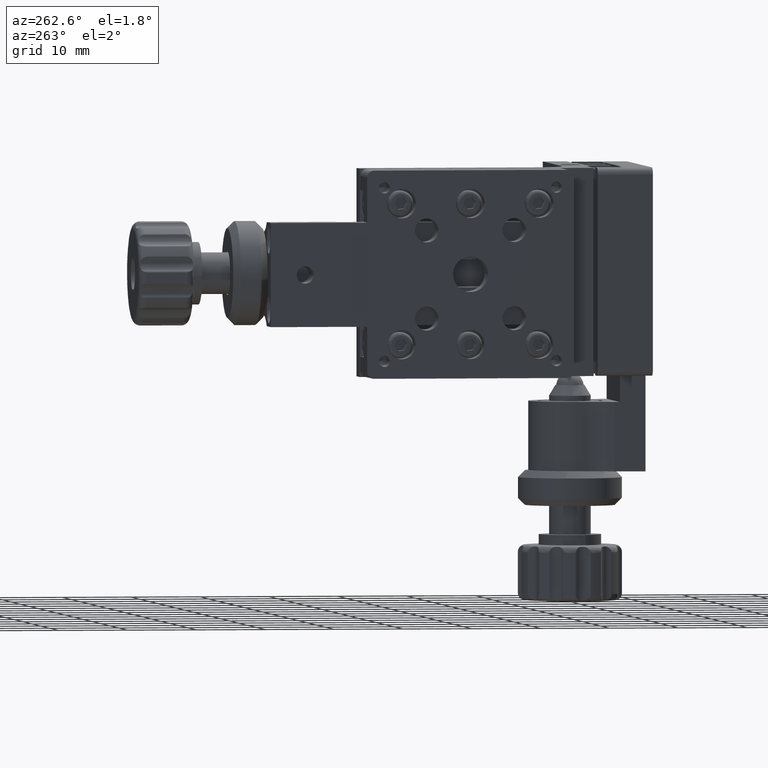
[diagram: clean part render]
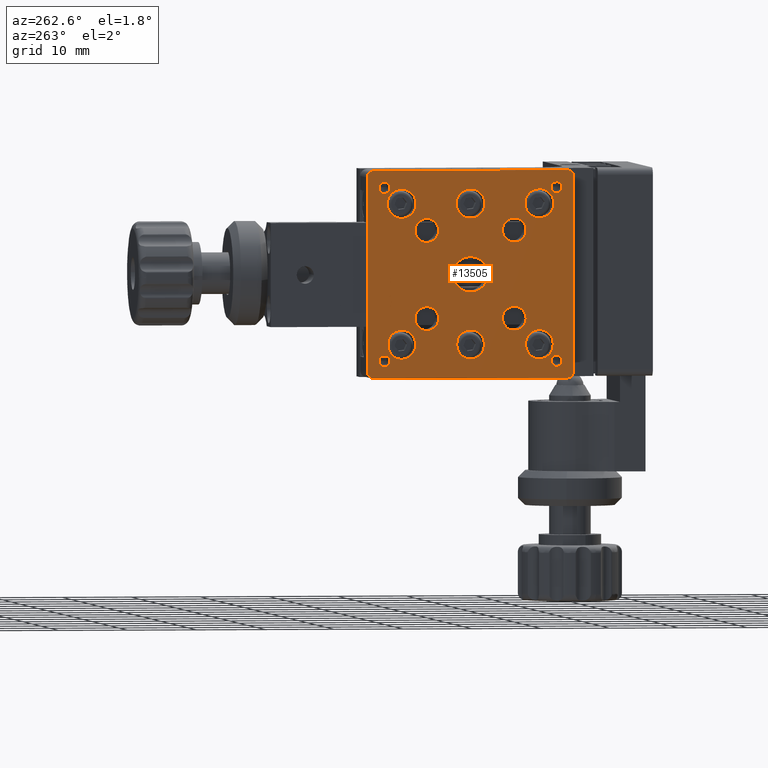
[diagram: same view with one face highlighted and labeled with its STEP entity id]
A machine part, auxiliary view. The second image highlights one B-rep face of the part: STEP entity #13505.
In plain terms, the highlighted planar face has unit normal (1, 0, 0).
Its self-contained STEP definition (entity closure, byte-faithful):
#383 = CIRCLE ( 'NONE', #15889, 0.9999999999999991100 ) ;
#711 = EDGE_CURVE ( 'NONE', #14404, #26437, #41181, .T. ) ;
#725 = DIRECTION ( 'NONE',  ( -1.000000000000000000, -2.282530889443428800E-016, -5.533751964173937300E-016 ) ) ;
#732 = AXIS2_PLACEMENT_3D ( 'NONE', #27218, #9975, #31419 ) ;
#802 = EDGE_LOOP ( 'NONE', ( #48774, #10825, #19311, #51978, #26288, #47659, #32256, #23997 ) ) ;
#847 = AXIS2_PLACEMENT_3D ( 'NONE', #16106, #20347, #24226 ) ;
#949 = ORIENTED_EDGE ( 'NONE', *, *, #4828, .F. ) ;
#978 = CIRCLE ( 'NONE', #4341, 0.7999999999999899400 ) ;
#1261 = CARTESIAN_POINT ( 'NONE',  ( -4.599999999999988100, 16.65000000000000600, -6.350000000000015600 ) ) ;
#1291 = CARTESIAN_POINT ( 'NONE',  ( -4.599999999999991700, 27.62280000000000900, -6.350000000000014700 ) ) ;
#1353 = VERTEX_POINT ( 'NONE', #46066 ) ;
#1570 = ORIENTED_EDGE ( 'NONE', *, *, #42021, .F. ) ;
#1784 = EDGE_CURVE ( 'NONE', #3541, #48182, #4379, .T. ) ;
#1793 = ORIENTED_EDGE ( 'NONE', *, *, #14414, .F. ) ;
#1838 = EDGE_CURVE ( 'NONE', #20154, #9327, #15953, .T. ) ;
#1851 = DIRECTION ( 'NONE',  ( 4.336808689942017700E-016, 0.0000000000000000000, -1.000000000000000000 ) ) ;
#2220 = DIRECTION ( 'NONE',  ( -2.282530889443435200E-016, 1.000000000000000000, 1.964574336543731100E-016 ) ) ;
#2498 = CARTESIAN_POINT ( 'NONE',  ( -4.599999999999999600, 7.999999999999992900, 13.99999999999997000 ) ) ;
#2704 = VERTEX_POINT ( 'NONE', #39926 ) ;
#2733 = VECTOR ( 'NONE', #41541, 1000.000000000000200 ) ;
#2873 = DIRECTION ( 'NONE',  ( -1.000000000000000000, -2.282530889443428800E-016, -4.377269646856065600E-016 ) ) ;
#2884 = EDGE_LOOP ( 'NONE', ( #10796, #41426 ) ) ;
#2894 = CARTESIAN_POINT ( 'NONE',  ( -4.599999999999986300, 13.00000000000000700, -10.00000000000001800 ) ) ;
#3299 = AXIS2_PLACEMENT_3D ( 'NONE', #30521, #26695, #44438 ) ;
#3402 = FACE_OUTER_BOUND ( 'NONE', #802, .T. ) ;
#3541 = VERTEX_POINT ( 'NONE', #11920 ) ;
#3585 = ORIENTED_EDGE ( 'NONE', *, *, #711, .F. ) ;
#4032 = ORIENTED_EDGE ( 'NONE', *, *, #41670, .F. ) ;
#4091 = FACE_BOUND ( 'NONE', #48949, .T. ) ;
#4125 = CARTESIAN_POINT ( 'NONE',  ( -4.599999999999997900, 14.92279999999999000, 6.349999999999984500 ) ) ;
#4181 = DIRECTION ( 'NONE',  ( 4.319153771519010900E-016, 0.02486808277456463400, -0.9996907414091207300 ) ) ;
#4341 = AXIS2_PLACEMENT_3D ( 'NONE', #28523, #6882, #55032 ) ;
#4379 = CIRCLE ( 'NONE', #5339, 2.100000000000001000 ) ;
#4440 = VERTEX_POINT ( 'NONE', #15340 ) ;
#4655 = CARTESIAN_POINT ( 'NONE',  ( -4.600000000000001400, 23.00000000000000400, 10.19999999999998500 ) ) ;
#4658 = CIRCLE ( 'NONE', #10984, 2.000000000000000000 ) ;
#4813 = EDGE_CURVE ( 'NONE', #35525, #33828, #9879, .T. ) ;
#4828 = EDGE_CURVE ( 'NONE', #6029, #18799, #978, .T. ) ;
#4870 = DIRECTION ( 'NONE',  ( -1.000000000000000000, -2.282530889443428800E-016, -5.533751964173937300E-016 ) ) ;
#4985 = VERTEX_POINT ( 'NONE', #26197 ) ;
#5050 = CARTESIAN_POINT ( 'NONE',  ( -4.600000000000009400, 15.09999999999999400, 10.19999999999998300 ) ) ;
#5143 = EDGE_LOOP ( 'NONE', ( #25597, #28413 ) ) ;
#5209 = DIRECTION ( 'NONE',  ( -1.000000000000000000, -2.282530889443428800E-016, -4.377269646856065600E-016 ) ) ;
#5339 = AXIS2_PLACEMENT_3D ( 'NONE', #5476, #23288, #14437 ) ;
#5352 = CIRCLE ( 'NONE', #10235, 1.727199999999998100 ) ;
#5399 = DIRECTION ( 'NONE',  ( 4.130293990420973300E-016, -1.000000000000000000, 0.0000000000000000000 ) ) ;
#5476 = CARTESIAN_POINT ( 'NONE',  ( -4.600000000000001400, 23.00000000000000400, 10.19999999999998500 ) ) ;
#5506 = CARTESIAN_POINT ( 'NONE',  ( -4.600000000000001400, 34.99007438041998300, -9.800992561958020500 ) ) ;
#5566 = LINE ( 'NONE', #41357, #34325 ) ;
#5654 = CARTESIAN_POINT ( 'NONE',  ( -4.600000000000001400, 29.34999999999998400, 6.349999999999985400 ) ) ;
#5784 = AXIS2_PLACEMENT_3D ( 'NONE', #51429, #33258, #55769 ) ;
#5840 = ORIENTED_EDGE ( 'NONE', *, *, #22302, .F. ) ;
#5939 = DIRECTION ( 'NONE',  ( -1.000000000000000000, -2.282530889443428800E-016, -5.533751964173937300E-016 ) ) ;
#5945 = EDGE_CURVE ( 'NONE', #26437, #14404, #9733, .T. ) ;
#5953 = VERTEX_POINT ( 'NONE', #22641 ) ;
#6005 = EDGE_CURVE ( 'NONE', #36110, #4440, #28893, .T. ) ;
#6029 = VERTEX_POINT ( 'NONE', #36556 ) ;
#6174 = EDGE_CURVE ( 'NONE', #1353, #4985, #23517, .T. ) ;
#6234 = CARTESIAN_POINT ( 'NONE',  ( -4.600000000000008500, 35.49999999999997900, 12.49999999999998800 ) ) ;
#6257 = ORIENTED_EDGE ( 'NONE', *, *, #24209, .F. ) ;
#6586 = AXIS2_PLACEMENT_3D ( 'NONE', #18199, #5939, #49222 ) ;
#6595 = DIRECTION ( 'NONE',  ( 4.336808689942017700E-016, 0.0000000000000000000, -1.000000000000000000 ) ) ;
#6788 = CARTESIAN_POINT ( 'NONE',  ( -4.599999999999986300, 15.00000000000000700, -10.20000000000002200 ) ) ;
#6848 = ORIENTED_EDGE ( 'NONE', *, *, #56487, .F. ) ;
#6882 = DIRECTION ( 'NONE',  ( -1.000000000000000000, -2.282530889443428800E-016, -4.377269646856065600E-016 ) ) ;
#7077 = CARTESIAN_POINT ( 'NONE',  ( -4.600000000000003200, 32.99999999999997200, 10.19999999999997800 ) ) ;
#7235 = EDGE_LOOP ( 'NONE', ( #18584, #5840 ) ) ;
#7298 = CARTESIAN_POINT ( 'NONE',  ( -4.600000000000008500, 34.69999999999998900, 12.49999999999998800 ) ) ;
#7541 = DIRECTION ( 'NONE',  ( -1.000000000000000000, -2.282530889443428800E-016, -4.377269646856065600E-016 ) ) ;
#7802 = CARTESIAN_POINT ( 'NONE',  ( -4.599999999999989900, 21.00992561958000900, -9.800992561958020500 ) ) ;
#7944 = CIRCLE ( 'NONE', #41763, 2.099999999999999600 ) ;
#8003 = ORIENTED_EDGE ( 'NONE', *, *, #55034, .F. ) ;
#8191 = FACE_BOUND ( 'NONE', #47849, .T. ) ;
#8288 = CARTESIAN_POINT ( 'NONE',  ( -4.599999999999994300, 35.50000000000000700, -12.50000000000001400 ) ) ;
#8379 = ORIENTED_EDGE ( 'NONE', *, *, #56061, .F. ) ;
#8407 = EDGE_CURVE ( 'NONE', #44341, #2704, #47946, .T. ) ;
#8558 = CARTESIAN_POINT ( 'NONE',  ( -4.599999999999991700, 35.00000000000000000, -10.20000000000001200 ) ) ;
#8836 = DIRECTION ( 'NONE',  ( 0.0000000000000000000, -1.000000000000000000, 0.0000000000000000000 ) ) ;
#9154 = CARTESIAN_POINT ( 'NONE',  ( -4.599999999999980100, 33.00000000000000700, -12.20000000000001900 ) ) ;
#9327 = VERTEX_POINT ( 'NONE', #46714 ) ;
#9438 = CARTESIAN_POINT ( 'NONE',  ( -4.599999999999991700, 31.00992561958001300, -9.800992561958018700 ) ) ;
#9503 = EDGE_CURVE ( 'NONE', #18799, #6029, #10980, .T. ) ;
#9733 = CIRCLE ( 'NONE', #732, 2.552699999999990900 ) ;
#9879 = CIRCLE ( 'NONE', #49444, 0.7999999999999882800 ) ;
#9887 = DIRECTION ( 'NONE',  ( 0.0000000000000000000, -1.000000000000000000, 0.0000000000000000000 ) ) ;
#9975 = DIRECTION ( 'NONE',  ( -1.000000000000000000, -2.282530889443428800E-016, -4.377269646856065600E-016 ) ) ;
#10052 = CIRCLE ( 'NONE', #53798, 2.000000000000000000 ) ;
#10178 = CIRCLE ( 'NONE', #21600, 2.100000000000001000 ) ;
#10235 = AXIS2_PLACEMENT_3D ( 'NONE', #5654, #27872, #23466 ) ;
#10452 = LINE ( 'NONE', #8558, #44031 ) ;
#10478 = DIRECTION ( 'NONE',  ( 4.336808689942017700E-016, 0.0000000000000000000, -1.000000000000000000 ) ) ;
#10556 = AXIS2_PLACEMENT_3D ( 'NONE', #19809, #46020, #50421 ) ;
#10736 = EDGE_CURVE ( 'NONE', #43642, #33038, #48542, .T. ) ;
#10796 = ORIENTED_EDGE ( 'NONE', *, *, #46275, .F. ) ;
#10825 = ORIENTED_EDGE ( 'NONE', *, *, #8407, .T. ) ;
#10839 = CARTESIAN_POINT ( 'NONE',  ( -4.600000000000006800, 36.99999999999996400, 14.99999999999999600 ) ) ;
#10939 = DIRECTION ( 'NONE',  ( 3.397820887642130400E-016, -1.000000000000000000, -1.964574336543734500E-016 ) ) ;
#10980 = CIRCLE ( 'NONE', #31333, 0.7999999999999899400 ) ;
#10984 = AXIS2_PLACEMENT_3D ( 'NONE', #56774, #43608, #12966 ) ;
#11139 = DIRECTION ( 'NONE',  ( 4.336808689942017700E-016, 0.0000000000000000000, -1.000000000000000000 ) ) ;
#11201 = ORIENTED_EDGE ( 'NONE', *, *, #15598, .F. ) ;
#11229 = VERTEX_POINT ( 'NONE', #26740 ) ;
#11324 = FACE_BOUND ( 'NONE', #53160, .T. ) ;
#11627 = EDGE_LOOP ( 'NONE', ( #1570, #54332 ) ) ;
#11915 = DIRECTION ( 'NONE',  ( 0.0000000000000000000, -1.000000000000000000, 0.0000000000000000000 ) ) ;
#11920 = CARTESIAN_POINT ( 'NONE',  ( -4.600000000000000500, 20.90000000000000200, 10.19999999999998500 ) ) ;
#12100 = ORIENTED_EDGE ( 'NONE', *, *, #55198, .F. ) ;
#12113 = CARTESIAN_POINT ( 'NONE',  ( -4.599999999999982800, 8.000000000000008900, -15.00000000000001400 ) ) ;
#12126 = VECTOR ( 'NONE', #17182, 1000.000000000000000 ) ;
#12966 = DIRECTION ( 'NONE',  ( 4.336808689942017700E-016, 0.0000000000000000000, -1.000000000000000000 ) ) ;
#13123 = CIRCLE ( 'NONE', #45462, 2.099999999999997900 ) ;
#13409 = VERTEX_POINT ( 'NONE', #9154 ) ;
#13477 = VECTOR ( 'NONE', #37385, 1000.000000000000000 ) ;
#13505 = ADVANCED_FACE ( 'NONE', ( #34605, #20939, #11324, #54439, #23993, #13687, #17076, #8191, #32842, #4091, #45856, #42442, #39741, #41747, #34209, #3402 ), #53686, .F. ) ;
#13687 = FACE_BOUND ( 'NONE', #48857, .T. ) ;
#13724 = CARTESIAN_POINT ( 'NONE',  ( -4.599999999999982800, 9.000000000000008900, -14.00000000000001400 ) ) ;
#13880 = CARTESIAN_POINT ( 'NONE',  ( -4.599999999999986300, 15.00000000000000700, -10.20000000000002200 ) ) ;
#13933 = CARTESIAN_POINT ( 'NONE',  ( -4.599999999999994300, 10.49999999999999300, 12.49999999999998600 ) ) ;
#14201 = VERTEX_POINT ( 'NONE', #32793 ) ;
#14404 = VERTEX_POINT ( 'NONE', #42711 ) ;
#14414 = EDGE_CURVE ( 'NONE', #48182, #3541, #10178, .T. ) ;
#14437 = DIRECTION ( 'NONE',  ( 4.130293990420967400E-016, -1.000000000000000000, 0.0000000000000000000 ) ) ;
#14444 = DIRECTION ( 'NONE',  ( 0.0000000000000000000, -1.000000000000000000, 0.0000000000000000000 ) ) ;
#14874 = DIRECTION ( 'NONE',  ( -1.000000000000000000, -2.282530889443428800E-016, -5.533751964173937300E-016 ) ) ;
#15092 = CIRCLE ( 'NONE', #3299, 1.727199999999998100 ) ;
#15301 = DIRECTION ( 'NONE',  ( -2.282530889443435200E-016, 1.000000000000000000, 1.964574336543731100E-016 ) ) ;
#15319 = EDGE_CURVE ( 'NONE', #52213, #14201, #5352, .T. ) ;
#15340 = CARTESIAN_POINT ( 'NONE',  ( -4.600000000000006800, 37.99999999999996400, 13.99999999999999500 ) ) ;
#15398 = VERTEX_POINT ( 'NONE', #23367 ) ;
#15414 = CIRCLE ( 'NONE', #847, 2.000000000000000000 ) ;
#15563 = DIRECTION ( 'NONE',  ( 0.0000000000000000000, -1.000000000000000000, 0.0000000000000000000 ) ) ;
#15598 = EDGE_CURVE ( 'NONE', #35239, #20340, #4658, .T. ) ;
#15626 = EDGE_CURVE ( 'NONE', #4440, #44341, #21062, .T. ) ;
#15747 = CARTESIAN_POINT ( 'NONE',  ( -4.599999999999988100, 22.99999999999998900, -10.00000000000001600 ) ) ;
#15774 = VERTEX_POINT ( 'NONE', #48200 ) ;
#15868 = EDGE_LOOP ( 'NONE', ( #48895, #16128, #56701, #6257, #55721 ) ) ;
#15889 = AXIS2_PLACEMENT_3D ( 'NONE', #13724, #725, #52388 ) ;
#15953 = CIRCLE ( 'NONE', #51517, 2.000000000000000000 ) ;
#16066 = EDGE_CURVE ( 'NONE', #42807, #2704, #44992, .T. ) ;
#16101 = CARTESIAN_POINT ( 'NONE',  ( -4.599999999999991700, 29.35000000000000900, -6.350000000000014700 ) ) ;
#16106 = CARTESIAN_POINT ( 'NONE',  ( -4.599999999999988100, 22.99999999999998900, -10.20000000000001500 ) ) ;
#16128 = ORIENTED_EDGE ( 'NONE', *, *, #47012, .F. ) ;
#16697 = DIRECTION ( 'NONE',  ( 5.533751964173943200E-016, 1.964574336543732300E-016, -1.000000000000000000 ) ) ;
#17076 = FACE_BOUND ( 'NONE', #15868, .T. ) ;
#17182 = DIRECTION ( 'NONE',  ( 5.533751964173943200E-016, 1.964574336543732300E-016, -1.000000000000000000 ) ) ;
#17608 = CIRCLE ( 'NONE', #41511, 0.7999999999999899400 ) ;
#17690 = AXIS2_PLACEMENT_3D ( 'NONE', #8288, #39476, #30526 ) ;
#17847 = ORIENTED_EDGE ( 'NONE', *, *, #37037, .F. ) ;
#18199 = CARTESIAN_POINT ( 'NONE',  ( -4.600000000000006800, 36.99999999999996400, 13.99999999999999500 ) ) ;
#18584 = ORIENTED_EDGE ( 'NONE', *, *, #22178, .F. ) ;
#18672 = AXIS2_PLACEMENT_3D ( 'NONE', #56253, #21288, #30098 ) ;
#18799 = VERTEX_POINT ( 'NONE', #48175 ) ;
#18851 = DIRECTION ( 'NONE',  ( -1.000000000000000000, -2.282530889443428800E-016, -4.377269646856065600E-016 ) ) ;
#18853 = CIRCLE ( 'NONE', #21374, 2.000000000000000000 ) ;
#18912 = EDGE_CURVE ( 'NONE', #48393, #36037, #15414, .T. ) ;
#19311 = ORIENTED_EDGE ( 'NONE', *, *, #16066, .F. ) ;
#19320 = EDGE_CURVE ( 'NONE', #27532, #38535, #33544, .T. ) ;
#19461 = ORIENTED_EDGE ( 'NONE', *, *, #10736, .F. ) ;
#19558 = CARTESIAN_POINT ( 'NONE',  ( -4.599999999999996100, 22.99999999999998600, -1.391015657334570400E-014 ) ) ;
#19809 = CARTESIAN_POINT ( 'NONE',  ( -4.599999999999981000, 33.00000000000000700, -10.20000000000001900 ) ) ;
#19906 = CARTESIAN_POINT ( 'NONE',  ( -4.599999999999994300, 36.29999999999999000, -12.50000000000001400 ) ) ;
#20154 = VERTEX_POINT ( 'NONE', #7802 ) ;
#20194 = CARTESIAN_POINT ( 'NONE',  ( -4.599999999999982800, 8.000000000000008900, -15.00000000000001400 ) ) ;
#20264 = DIRECTION ( 'NONE',  ( 4.130293990420973300E-016, -1.000000000000000000, 0.0000000000000000000 ) ) ;
#20288 = EDGE_CURVE ( 'NONE', #42807, #11229, #383, .T. ) ;
#20340 = VERTEX_POINT ( 'NONE', #5506 ) ;
#20347 = DIRECTION ( 'NONE',  ( -1.000000000000000000, -2.282530889443428800E-016, -5.533751964173937300E-016 ) ) ;
#20359 = CIRCLE ( 'NONE', #5784, 1.727199999999998100 ) ;
#20463 = CARTESIAN_POINT ( 'NONE',  ( -4.599999999999994300, 10.49999999999999300, 12.49999999999998600 ) ) ;
#20484 = DIRECTION ( 'NONE',  ( 4.130293990420969900E-016, -1.000000000000000000, 0.0000000000000000000 ) ) ;
#20486 = ORIENTED_EDGE ( 'NONE', *, *, #42291, .F. ) ;
#20638 = VECTOR ( 'NONE', #34691, 1000.000000000000000 ) ;
#20939 = FACE_BOUND ( 'NONE', #2884, .T. ) ;
#21062 = LINE ( 'NONE', #52399, #12126 ) ;
#21086 = ORIENTED_EDGE ( 'NONE', *, *, #42085, .F. ) ;
#21288 = DIRECTION ( 'NONE',  ( -1.000000000000000000, -2.282530889443428800E-016, -5.533751964173937300E-016 ) ) ;
#21374 = AXIS2_PLACEMENT_3D ( 'NONE', #28112, #23896, #1851 ) ;
#21600 = AXIS2_PLACEMENT_3D ( 'NONE', #4655, #48086, #35249 ) ;
#21738 = VECTOR ( 'NONE', #2220, 1000.000000000000000 ) ;
#22178 = EDGE_CURVE ( 'NONE', #48458, #35337, #39604, .T. ) ;
#22302 = EDGE_CURVE ( 'NONE', #35337, #48458, #27310, .T. ) ;
#22539 = LINE ( 'NONE', #38442, #34130 ) ;
#22641 = CARTESIAN_POINT ( 'NONE',  ( -4.599999999999988100, 21.00992561958000900, -10.00099256195801400 ) ) ;
#22679 = EDGE_CURVE ( 'NONE', #37917, #15398, #10052, .T. ) ;
#22702 = VERTEX_POINT ( 'NONE', #55004 ) ;
#22719 = EDGE_LOOP ( 'NONE', ( #25571, #19461 ) ) ;
#23110 = DIRECTION ( 'NONE',  ( -1.000000000000000000, -2.282530889443428800E-016, -4.377269646856065600E-016 ) ) ;
#23124 = CARTESIAN_POINT ( 'NONE',  ( -4.599999999999982800, 8.000000000000008900, -15.00000000000001400 ) ) ;
#23184 = DIRECTION ( 'NONE',  ( -8.673617379884027600E-016, 0.0000000000000000000, 1.000000000000000000 ) ) ;
#23288 = DIRECTION ( 'NONE',  ( -1.000000000000000000, -2.282530889443428800E-016, -4.377269646856065600E-016 ) ) ;
#23319 = DIRECTION ( 'NONE',  ( -5.533751964173943200E-016, -1.964574336543732300E-016, 1.000000000000000000 ) ) ;
#23361 = EDGE_CURVE ( 'NONE', #38535, #27532, #7944, .T. ) ;
#23367 = CARTESIAN_POINT ( 'NONE',  ( -4.599999999999985400, 12.99999999999999800, -12.20000000000001700 ) ) ;
#23466 = DIRECTION ( 'NONE',  ( 0.0000000000000000000, -1.000000000000000000, 0.0000000000000000000 ) ) ;
#23517 = CIRCLE ( 'NONE', #28241, 0.7999999999999899400 ) ;
#23659 = DIRECTION ( 'NONE',  ( -1.000000000000000000, -2.282530889443428800E-016, -4.377269646856065600E-016 ) ) ;
#23854 = DIRECTION ( 'NONE',  ( -1.000000000000000000, -2.282530889443428800E-016, -5.533751964173937300E-016 ) ) ;
#23891 = AXIS2_PLACEMENT_3D ( 'NONE', #16101, #29934, #51153 ) ;
#23896 = DIRECTION ( 'NONE',  ( -1.000000000000000000, -2.282530889443428800E-016, -5.533751964173937300E-016 ) ) ;
#23920 = CARTESIAN_POINT ( 'NONE',  ( -4.599999999999986300, 13.00000000000000700, -10.20000000000001700 ) ) ;
#23952 = ORIENTED_EDGE ( 'NONE', *, *, #9503, .F. ) ;
#23993 = FACE_BOUND ( 'NONE', #55045, .T. ) ;
#23997 = ORIENTED_EDGE ( 'NONE', *, *, #6005, .T. ) ;
#24129 = DIRECTION ( 'NONE',  ( 0.0000000000000000000, -1.000000000000000000, 0.0000000000000000000 ) ) ;
#24209 = EDGE_CURVE ( 'NONE', #9327, #48393, #35749, .T. ) ;
#24226 = DIRECTION ( 'NONE',  ( 4.336808689942017700E-016, 0.0000000000000000000, -1.000000000000000000 ) ) ;
#24305 = DIRECTION ( 'NONE',  ( -1.000000000000000000, -2.282530889443428800E-016, -4.377269646856065600E-016 ) ) ;
#24399 = CARTESIAN_POINT ( 'NONE',  ( -4.599999999999991700, 35.00000000000000000, -10.20000000000001200 ) ) ;
#24675 = CARTESIAN_POINT ( 'NONE',  ( -4.600000000000008500, 35.49999999999997900, 12.49999999999998800 ) ) ;
#25175 = CARTESIAN_POINT ( 'NONE',  ( -4.600000000000008500, 12.99999999999999500, 10.19999999999998300 ) ) ;
#25571 = ORIENTED_EDGE ( 'NONE', *, *, #36848, .F. ) ;
#25597 = ORIENTED_EDGE ( 'NONE', *, *, #36216, .F. ) ;
#25803 = CARTESIAN_POINT ( 'NONE',  ( -4.599999999999979200, 24.99999999999998900, -10.20000000000002100 ) ) ;
#25828 = CIRCLE ( 'NONE', #10556, 2.000000000000000000 ) ;
#25913 = CARTESIAN_POINT ( 'NONE',  ( -4.599999999999997900, 16.64999999999998800, 6.349999999999984500 ) ) ;
#25952 = AXIS2_PLACEMENT_3D ( 'NONE', #27429, #35821, #44441 ) ;
#25953 = ORIENTED_EDGE ( 'NONE', *, *, #51012, .F. ) ;
#26197 = CARTESIAN_POINT ( 'NONE',  ( -4.599999999999994300, 9.700000000000004600, 12.49999999999998600 ) ) ;
#26264 = CARTESIAN_POINT ( 'NONE',  ( -4.599999999999984500, 10.50000000000000500, -12.50000000000001600 ) ) ;
#26288 = ORIENTED_EDGE ( 'NONE', *, *, #52335, .F. ) ;
#26292 = DIRECTION ( 'NONE',  ( 0.0000000000000000000, -1.000000000000000000, 0.0000000000000000000 ) ) ;
#26300 = CIRCLE ( 'NONE', #42996, 2.000000000000000000 ) ;
#26437 = VERTEX_POINT ( 'NONE', #33074 ) ;
#26448 = CIRCLE ( 'NONE', #54188, 2.000000000000000000 ) ;
#26612 = CARTESIAN_POINT ( 'NONE',  ( -4.599999999999975700, 11.00000000000000700, -10.00000000000001400 ) ) ;
#26695 = DIRECTION ( 'NONE',  ( -1.000000000000000000, -2.282530889443428800E-016, -4.377269646856065600E-016 ) ) ;
#26740 = CARTESIAN_POINT ( 'NONE',  ( -4.599999999999982800, 8.000000000000008900, -14.00000000000001400 ) ) ;
#26933 = AXIS2_PLACEMENT_3D ( 'NONE', #36891, #28133, #10478 ) ;
#27218 = CARTESIAN_POINT ( 'NONE',  ( -4.599999999999996100, 22.99999999999998600, -1.391015657334570400E-014 ) ) ;
#27310 = CIRCLE ( 'NONE', #25952, 1.727199999999998100 ) ;
#27341 = ORIENTED_EDGE ( 'NONE', *, *, #22679, .F. ) ;
#27429 = CARTESIAN_POINT ( 'NONE',  ( -4.599999999999997900, 16.64999999999998800, 6.349999999999984500 ) ) ;
#27503 = ORIENTED_EDGE ( 'NONE', *, *, #28055, .F. ) ;
#27532 = VERTEX_POINT ( 'NONE', #5050 ) ;
#27552 = EDGE_CURVE ( 'NONE', #15398, #52838, #26300, .T. ) ;
#27714 = ORIENTED_EDGE ( 'NONE', *, *, #5945, .F. ) ;
#27872 = DIRECTION ( 'NONE',  ( -1.000000000000000000, -2.282530889443428800E-016, -4.377269646856065600E-016 ) ) ;
#28055 = EDGE_CURVE ( 'NONE', #20340, #39366, #10452, .T. ) ;
#28112 = CARTESIAN_POINT ( 'NONE',  ( -4.599999999999988100, 22.99999999999998900, -10.20000000000001500 ) ) ;
#28133 = DIRECTION ( 'NONE',  ( -1.000000000000000000, -2.282530889443428800E-016, -5.533751964173937300E-016 ) ) ;
#28241 = AXIS2_PLACEMENT_3D ( 'NONE', #20463, #46482, #55241 ) ;
#28413 = ORIENTED_EDGE ( 'NONE', *, *, #6174, .F. ) ;
#28523 = CARTESIAN_POINT ( 'NONE',  ( -4.599999999999984500, 10.50000000000000500, -12.50000000000001600 ) ) ;
#28778 = ORIENTED_EDGE ( 'NONE', *, *, #23361, .F. ) ;
#28893 = CIRCLE ( 'NONE', #6586, 1.000000000000000900 ) ;
#28952 = DIRECTION ( 'NONE',  ( -1.000000000000000000, -2.282530889443428800E-016, -5.533751964173937300E-016 ) ) ;
#29237 = AXIS2_PLACEMENT_3D ( 'NONE', #1261, #18851, #14444 ) ;
#29507 = CIRCLE ( 'NONE', #23891, 1.727199999999998100 ) ;
#29934 = DIRECTION ( 'NONE',  ( -1.000000000000000000, -2.282530889443428800E-016, -4.377269646856065600E-016 ) ) ;
#30098 = DIRECTION ( 'NONE',  ( -8.673617379884043400E-016, 0.0000000000000000000, 1.000000000000000000 ) ) ;
#30340 = CARTESIAN_POINT ( 'NONE',  ( -4.599999999999979200, 24.99999999999998900, -10.20000000000002100 ) ) ;
#30521 = CARTESIAN_POINT ( 'NONE',  ( -4.600000000000001400, 29.34999999999998400, 6.349999999999985400 ) ) ;
#30526 = DIRECTION ( 'NONE',  ( 0.0000000000000000000, -1.000000000000000000, 0.0000000000000000000 ) ) ;
#31093 = CARTESIAN_POINT ( 'NONE',  ( -4.599999999999986300, 13.00000000000000700, -10.20000000000001700 ) ) ;
#31169 = CIRCLE ( 'NONE', #54977, 2.099999999999997900 ) ;
#31333 = AXIS2_PLACEMENT_3D ( 'NONE', #26264, #48457, #8836 ) ;
#31419 = DIRECTION ( 'NONE',  ( 3.397820887642130400E-016, -1.000000000000000000, -1.964574336543734500E-016 ) ) ;
#31584 = DIRECTION ( 'NONE',  ( -1.000000000000000000, -2.282530889443428800E-016, -5.533751964173937300E-016 ) ) ;
#32256 = ORIENTED_EDGE ( 'NONE', *, *, #55456, .T. ) ;
#32742 = CARTESIAN_POINT ( 'NONE',  ( -4.599999999999989900, 30.99999999999998900, -10.20000000000001000 ) ) ;
#32793 = CARTESIAN_POINT ( 'NONE',  ( -4.600000000000001400, 31.07719999999998400, 6.349999999999986300 ) ) ;
#32842 = FACE_BOUND ( 'NONE', #5143, .T. ) ;
#33038 = VERTEX_POINT ( 'NONE', #47959 ) ;
#33074 = CARTESIAN_POINT ( 'NONE',  ( -4.599999999999997000, 25.55269999999997700, -1.224247651290091200E-014 ) ) ;
#33242 = ORIENTED_EDGE ( 'NONE', *, *, #15319, .F. ) ;
#33258 = DIRECTION ( 'NONE',  ( -1.000000000000000000, -2.282530889443428800E-016, -4.377269646856065600E-016 ) ) ;
#33389 = DIRECTION ( 'NONE',  ( 4.130293990420969900E-016, -1.000000000000000000, 0.0000000000000000000 ) ) ;
#33544 = CIRCLE ( 'NONE', #52563, 2.099999999999999600 ) ;
#33748 = CARTESIAN_POINT ( 'NONE',  ( -4.599999999999988100, 16.65000000000000600, -6.350000000000015600 ) ) ;
#33828 = VERTEX_POINT ( 'NONE', #7298 ) ;
#34094 = VECTOR ( 'NONE', #16697, 1000.000000000000000 ) ;
#34130 = VECTOR ( 'NONE', #42651, 1000.000000000000000 ) ;
#34209 = FACE_BOUND ( 'NONE', #44747, .T. ) ;
#34325 = VECTOR ( 'NONE', #15301, 1000.000000000000000 ) ;
#34605 = FACE_BOUND ( 'NONE', #7235, .T. ) ;
#34691 = DIRECTION ( 'NONE',  ( 4.377269646856075900E-016, 1.964574336543732100E-016, -1.000000000000000000 ) ) ;
#35239 = VERTEX_POINT ( 'NONE', #9438 ) ;
#35249 = DIRECTION ( 'NONE',  ( 4.130293990420967400E-016, -1.000000000000000000, 0.0000000000000000000 ) ) ;
#35337 = VERTEX_POINT ( 'NONE', #35646 ) ;
#35462 = DIRECTION ( 'NONE',  ( 4.336808689942017700E-016, 0.0000000000000000000, -1.000000000000000000 ) ) ;
#35525 = VERTEX_POINT ( 'NONE', #54160 ) ;
#35611 = EDGE_CURVE ( 'NONE', #5953, #20154, #22539, .T. ) ;
#35646 = CARTESIAN_POINT ( 'NONE',  ( -4.599999999999997900, 18.37719999999998400, 6.349999999999985400 ) ) ;
#35749 = LINE ( 'NONE', #30340, #20638 ) ;
#35760 = DIRECTION ( 'NONE',  ( -1.000000000000000000, -2.282530889443428800E-016, -4.377269646856065600E-016 ) ) ;
#35821 = DIRECTION ( 'NONE',  ( -1.000000000000000000, -2.282530889443428800E-016, -4.377269646856065600E-016 ) ) ;
#35996 = CARTESIAN_POINT ( 'NONE',  ( -4.600000000000003200, 32.99999999999997200, 10.19999999999997800 ) ) ;
#36037 = VERTEX_POINT ( 'NONE', #54259 ) ;
#36110 = VERTEX_POINT ( 'NONE', #10839 ) ;
#36216 = EDGE_CURVE ( 'NONE', #4985, #1353, #17608, .T. ) ;
#36404 = EDGE_LOOP ( 'NONE', ( #33242, #12100 ) ) ;
#36556 = CARTESIAN_POINT ( 'NONE',  ( -4.599999999999984500, 11.29999999999999500, -12.50000000000001400 ) ) ;
#36775 = LINE ( 'NONE', #6788, #13477 ) ;
#36848 = EDGE_CURVE ( 'NONE', #33038, #43642, #44265, .T. ) ;
#36891 = CARTESIAN_POINT ( 'NONE',  ( -4.599999999999981000, 33.00000000000000700, -10.20000000000001900 ) ) ;
#37037 = EDGE_CURVE ( 'NONE', #22702, #35239, #42477, .T. ) ;
#37061 = VERTEX_POINT ( 'NONE', #49797 ) ;
#37385 = DIRECTION ( 'NONE',  ( 4.377269646856075900E-016, 1.964574336543732100E-016, -1.000000000000000000 ) ) ;
#37871 = DIRECTION ( 'NONE',  ( -1.000000000000000000, -2.282530889443428800E-016, -4.377269646856065600E-016 ) ) ;
#37917 = VERTEX_POINT ( 'NONE', #13880 ) ;
#38007 = EDGE_CURVE ( 'NONE', #52838, #44301, #41270, .T. ) ;
#38265 = CARTESIAN_POINT ( 'NONE',  ( -4.600000000000008500, 12.99999999999999500, 10.19999999999998300 ) ) ;
#38442 = CARTESIAN_POINT ( 'NONE',  ( -4.599999999999988100, 21.00992561958000900, -10.00099256195801400 ) ) ;
#38535 = VERTEX_POINT ( 'NONE', #49033 ) ;
#38582 = AXIS2_PLACEMENT_3D ( 'NONE', #45345, #31584, #23184 ) ;
#38744 = AXIS2_PLACEMENT_3D ( 'NONE', #23124, #54071, #23319 ) ;
#38875 = CARTESIAN_POINT ( 'NONE',  ( -4.600000000000004100, 35.09999999999997300, 10.19999999999998000 ) ) ;
#38876 = LINE ( 'NONE', #12113, #34094 ) ;
#39017 = AXIS2_PLACEMENT_3D ( 'NONE', #45633, #23659, #15563 ) ;
#39087 = CARTESIAN_POINT ( 'NONE',  ( -4.599999999999999600, 8.999999999999994700, 14.99999999999997000 ) ) ;
#39366 = VERTEX_POINT ( 'NONE', #24399 ) ;
#39476 = DIRECTION ( 'NONE',  ( -1.000000000000000000, -2.282530889443428800E-016, -4.377269646856065600E-016 ) ) ;
#39604 = CIRCLE ( 'NONE', #45359, 1.727199999999998100 ) ;
#39741 = FACE_BOUND ( 'NONE', #41960, .T. ) ;
#39926 = CARTESIAN_POINT ( 'NONE',  ( -4.599999999999989900, 37.00000000000000700, -15.00000000000000700 ) ) ;
#40669 = CIRCLE ( 'NONE', #29237, 1.727199999999998100 ) ;
#41181 = CIRCLE ( 'NONE', #45968, 2.552699999999990900 ) ;
#41232 = CARTESIAN_POINT ( 'NONE',  ( -4.599999999999975700, 11.00000000000000700, -10.20000000000001400 ) ) ;
#41270 = LINE ( 'NONE', #41232, #56281 ) ;
#41357 = CARTESIAN_POINT ( 'NONE',  ( -4.599999999999999600, 7.999999999999992900, 14.99999999999997000 ) ) ;
#41426 = ORIENTED_EDGE ( 'NONE', *, *, #52066, .F. ) ;
#41511 = AXIS2_PLACEMENT_3D ( 'NONE', #13933, #35760, #50491 ) ;
#41541 = DIRECTION ( 'NONE',  ( -4.432678105707388500E-016, 0.02486808277457292300, 0.9996907414091204000 ) ) ;
#41670 = EDGE_CURVE ( 'NONE', #46898, #46535, #20359, .T. ) ;
#41747 = FACE_BOUND ( 'NONE', #43997, .T. ) ;
#41763 = AXIS2_PLACEMENT_3D ( 'NONE', #38265, #2873, #20484 ) ;
#41868 = ORIENTED_EDGE ( 'NONE', *, *, #38007, .F. ) ;
#41960 = EDGE_LOOP ( 'NONE', ( #28778, #45443 ) ) ;
#42021 = EDGE_CURVE ( 'NONE', #33828, #35525, #45619, .T. ) ;
#42085 = EDGE_CURVE ( 'NONE', #13409, #22702, #25828, .T. ) ;
#42090 = CARTESIAN_POINT ( 'NONE',  ( -4.599999999999991700, 31.07720000000000500, -6.350000000000013000 ) ) ;
#42291 = EDGE_CURVE ( 'NONE', #44301, #15774, #26448, .T. ) ;
#42375 = ORIENTED_EDGE ( 'NONE', *, *, #27552, .F. ) ;
#42442 = FACE_BOUND ( 'NONE', #11627, .T. ) ;
#42460 = EDGE_CURVE ( 'NONE', #55520, #55952, #54476, .T. ) ;
#42477 = LINE ( 'NONE', #32742, #2733 ) ;
#42537 = VERTEX_POINT ( 'NONE', #49932 ) ;
#42651 = DIRECTION ( 'NONE',  ( -4.377269646856075900E-016, -1.964574336543732100E-016, 1.000000000000000000 ) ) ;
#42711 = CARTESIAN_POINT ( 'NONE',  ( -4.599999999999995200, 20.44729999999999500, -1.441165346423522100E-014 ) ) ;
#42807 = VERTEX_POINT ( 'NONE', #54202 ) ;
#42996 = AXIS2_PLACEMENT_3D ( 'NONE', #31093, #4870, #35462 ) ;
#43608 = DIRECTION ( 'NONE',  ( -1.000000000000000000, -2.282530889443428800E-016, -5.533751964173937300E-016 ) ) ;
#43639 = ORIENTED_EDGE ( 'NONE', *, *, #55274, .F. ) ;
#43642 = VERTEX_POINT ( 'NONE', #19906 ) ;
#43716 = VERTEX_POINT ( 'NONE', #47252 ) ;
#43995 = CARTESIAN_POINT ( 'NONE',  ( -4.599999999999989900, 38.00000000000000700, -14.00000000000000500 ) ) ;
#43997 = EDGE_LOOP ( 'NONE', ( #56119, #1793 ) ) ;
#44014 = CARTESIAN_POINT ( 'NONE',  ( -4.599999999999975700, 11.00000000000000700, -10.20000000000001400 ) ) ;
#44031 = VECTOR ( 'NONE', #4181, 1000.000000000000000 ) ;
#44265 = CIRCLE ( 'NONE', #17690, 0.7999999999999882800 ) ;
#44301 = VERTEX_POINT ( 'NONE', #26612 ) ;
#44341 = VERTEX_POINT ( 'NONE', #43995 ) ;
#44438 = DIRECTION ( 'NONE',  ( 0.0000000000000000000, -1.000000000000000000, 0.0000000000000000000 ) ) ;
#44441 = DIRECTION ( 'NONE',  ( 0.0000000000000000000, -1.000000000000000000, 0.0000000000000000000 ) ) ;
#44747 = EDGE_LOOP ( 'NONE', ( #8379, #43639 ) ) ;
#44906 = VERTEX_POINT ( 'NONE', #38875 ) ;
#44992 = LINE ( 'NONE', #20194, #21738 ) ;
#45016 = AXIS2_PLACEMENT_3D ( 'NONE', #6234, #23110, #9887 ) ;
#45345 = CARTESIAN_POINT ( 'NONE',  ( -4.599999999999989900, 37.00000000000000700, -14.00000000000000500 ) ) ;
#45359 = AXIS2_PLACEMENT_3D ( 'NONE', #25913, #52111, #26292 ) ;
#45443 = ORIENTED_EDGE ( 'NONE', *, *, #19320, .F. ) ;
#45462 = AXIS2_PLACEMENT_3D ( 'NONE', #35996, #5209, #5399 ) ;
#45619 = CIRCLE ( 'NONE', #45016, 0.7999999999999882800 ) ;
#45633 = CARTESIAN_POINT ( 'NONE',  ( -4.599999999999994300, 35.50000000000000700, -12.50000000000001400 ) ) ;
#45690 = DIRECTION ( 'NONE',  ( 4.336808689942017700E-016, 0.0000000000000000000, -1.000000000000000000 ) ) ;
#45856 = FACE_BOUND ( 'NONE', #22719, .T. ) ;
#45968 = AXIS2_PLACEMENT_3D ( 'NONE', #19558, #50185, #10939 ) ;
#46020 = DIRECTION ( 'NONE',  ( -1.000000000000000000, -2.282530889443428800E-016, -5.533751964173937300E-016 ) ) ;
#46066 = CARTESIAN_POINT ( 'NONE',  ( -4.599999999999994300, 11.29999999999998300, 12.49999999999998800 ) ) ;
#46275 = EDGE_CURVE ( 'NONE', #42537, #43716, #47010, .T. ) ;
#46482 = DIRECTION ( 'NONE',  ( -1.000000000000000000, -2.282530889443428800E-016, -4.377269646856065600E-016 ) ) ;
#46535 = VERTEX_POINT ( 'NONE', #42090 ) ;
#46714 = CARTESIAN_POINT ( 'NONE',  ( -4.599999999999979200, 24.99999999999998900, -10.00000000000001400 ) ) ;
#46898 = VERTEX_POINT ( 'NONE', #1291 ) ;
#47010 = CIRCLE ( 'NONE', #50273, 1.727199999999998100 ) ;
#47012 = EDGE_CURVE ( 'NONE', #36037, #5953, #18853, .T. ) ;
#47252 = CARTESIAN_POINT ( 'NONE',  ( -4.599999999999988100, 18.37720000000000200, -6.350000000000013900 ) ) ;
#47659 = ORIENTED_EDGE ( 'NONE', *, *, #42460, .T. ) ;
#47849 = EDGE_LOOP ( 'NONE', ( #41868, #42375, #27341, #25953, #20486 ) ) ;
#47946 = CIRCLE ( 'NONE', #38582, 1.000000000000000900 ) ;
#47959 = CARTESIAN_POINT ( 'NONE',  ( -4.599999999999994300, 34.70000000000001700, -12.50000000000001400 ) ) ;
#48086 = DIRECTION ( 'NONE',  ( -1.000000000000000000, -2.282530889443428800E-016, -4.377269646856065600E-016 ) ) ;
#48175 = CARTESIAN_POINT ( 'NONE',  ( -4.599999999999984500, 9.700000000000015300, -12.50000000000001600 ) ) ;
#48182 = VERTEX_POINT ( 'NONE', #54656 ) ;
#48200 = CARTESIAN_POINT ( 'NONE',  ( -4.599999999999986300, 15.00000000000000700, -10.00000000000002300 ) ) ;
#48393 = VERTEX_POINT ( 'NONE', #25803 ) ;
#48457 = DIRECTION ( 'NONE',  ( -1.000000000000000000, -2.282530889443428800E-016, -4.377269646856065600E-016 ) ) ;
#48458 = VERTEX_POINT ( 'NONE', #4125 ) ;
#48542 = CIRCLE ( 'NONE', #39017, 0.7999999999999882800 ) ;
#48774 = ORIENTED_EDGE ( 'NONE', *, *, #15626, .T. ) ;
#48857 = EDGE_LOOP ( 'NONE', ( #17847, #21086, #6848, #27503, #11201 ) ) ;
#48895 = ORIENTED_EDGE ( 'NONE', *, *, #35611, .F. ) ;
#48949 = EDGE_LOOP ( 'NONE', ( #23952, #949 ) ) ;
#49033 = CARTESIAN_POINT ( 'NONE',  ( -4.600000000000007600, 10.89999999999999500, 10.19999999999998300 ) ) ;
#49222 = DIRECTION ( 'NONE',  ( -8.673617379884027600E-016, 0.0000000000000000000, 1.000000000000000000 ) ) ;
#49299 = DIRECTION ( 'NONE',  ( -4.377269646856075900E-016, -1.964574336543732100E-016, 1.000000000000000000 ) ) ;
#49444 = AXIS2_PLACEMENT_3D ( 'NONE', #24675, #24305, #24129 ) ;
#49797 = CARTESIAN_POINT ( 'NONE',  ( -4.600000000000002300, 30.89999999999997700, 10.19999999999997800 ) ) ;
#49932 = CARTESIAN_POINT ( 'NONE',  ( -4.599999999999988100, 14.92280000000000800, -6.350000000000015600 ) ) ;
#50185 = DIRECTION ( 'NONE',  ( -1.000000000000000000, -2.282530889443428800E-016, -4.377269646856065600E-016 ) ) ;
#50240 = CARTESIAN_POINT ( 'NONE',  ( -4.600000000000001400, 27.62279999999998400, 6.349999999999985400 ) ) ;
#50273 = AXIS2_PLACEMENT_3D ( 'NONE', #33748, #7541, #11915 ) ;
#50421 = DIRECTION ( 'NONE',  ( 4.336808689942017700E-016, 0.0000000000000000000, -1.000000000000000000 ) ) ;
#50491 = DIRECTION ( 'NONE',  ( 0.0000000000000000000, -1.000000000000000000, 0.0000000000000000000 ) ) ;
#51012 = EDGE_CURVE ( 'NONE', #15774, #37917, #36775, .T. ) ;
#51153 = DIRECTION ( 'NONE',  ( 0.0000000000000000000, -1.000000000000000000, 0.0000000000000000000 ) ) ;
#51376 = DIRECTION ( 'NONE',  ( -1.000000000000000000, -2.282530889443428800E-016, -4.377269646856065600E-016 ) ) ;
#51429 = CARTESIAN_POINT ( 'NONE',  ( -4.599999999999991700, 29.35000000000000900, -6.350000000000014700 ) ) ;
#51517 = AXIS2_PLACEMENT_3D ( 'NONE', #15747, #23854, #6595 ) ;
#51978 = ORIENTED_EDGE ( 'NONE', *, *, #20288, .T. ) ;
#52066 = EDGE_CURVE ( 'NONE', #43716, #42537, #40669, .T. ) ;
#52111 = DIRECTION ( 'NONE',  ( -1.000000000000000000, -2.282530889443428800E-016, -4.377269646856065600E-016 ) ) ;
#52213 = VERTEX_POINT ( 'NONE', #50240 ) ;
#52335 = EDGE_CURVE ( 'NONE', #55520, #11229, #38876, .T. ) ;
#52388 = DIRECTION ( 'NONE',  ( -8.673617379884043400E-016, 0.0000000000000000000, 1.000000000000000000 ) ) ;
#52399 = CARTESIAN_POINT ( 'NONE',  ( -4.599999999999989900, 38.00000000000000700, -15.00000000000000700 ) ) ;
#52563 = AXIS2_PLACEMENT_3D ( 'NONE', #25175, #51376, #33389 ) ;
#52838 = VERTEX_POINT ( 'NONE', #44014 ) ;
#53160 = EDGE_LOOP ( 'NONE', ( #4032, #8003 ) ) ;
#53686 = PLANE ( 'NONE',  #38744 ) ;
#53798 = AXIS2_PLACEMENT_3D ( 'NONE', #23920, #14874, #45690 ) ;
#54071 = DIRECTION ( 'NONE',  ( 1.000000000000000000, 2.282530889443428800E-016, 5.533751964173943200E-016 ) ) ;
#54160 = CARTESIAN_POINT ( 'NONE',  ( -4.600000000000008500, 36.29999999999996200, 12.49999999999998800 ) ) ;
#54188 = AXIS2_PLACEMENT_3D ( 'NONE', #2894, #28952, #11139 ) ;
#54202 = CARTESIAN_POINT ( 'NONE',  ( -4.599999999999982800, 9.000000000000008900, -15.00000000000001400 ) ) ;
#54259 = CARTESIAN_POINT ( 'NONE',  ( -4.599999999999987200, 22.99999999999998900, -12.20000000000001500 ) ) ;
#54322 = CIRCLE ( 'NONE', #26933, 2.000000000000000000 ) ;
#54332 = ORIENTED_EDGE ( 'NONE', *, *, #4813, .F. ) ;
#54439 = FACE_BOUND ( 'NONE', #36404, .T. ) ;
#54476 = CIRCLE ( 'NONE', #18672, 0.9999999999999991100 ) ;
#54656 = CARTESIAN_POINT ( 'NONE',  ( -4.600000000000002300, 25.10000000000000500, 10.19999999999998700 ) ) ;
#54977 = AXIS2_PLACEMENT_3D ( 'NONE', #7077, #37871, #20264 ) ;
#55004 = CARTESIAN_POINT ( 'NONE',  ( -4.599999999999989900, 30.99999999999999300, -10.20000000000001400 ) ) ;
#55032 = DIRECTION ( 'NONE',  ( 0.0000000000000000000, -1.000000000000000000, 0.0000000000000000000 ) ) ;
#55034 = EDGE_CURVE ( 'NONE', #46535, #46898, #29507, .T. ) ;
#55045 = EDGE_LOOP ( 'NONE', ( #3585, #27714 ) ) ;
#55198 = EDGE_CURVE ( 'NONE', #14201, #52213, #15092, .T. ) ;
#55241 = DIRECTION ( 'NONE',  ( 0.0000000000000000000, -1.000000000000000000, 0.0000000000000000000 ) ) ;
#55274 = EDGE_CURVE ( 'NONE', #44906, #37061, #13123, .T. ) ;
#55456 = EDGE_CURVE ( 'NONE', #55952, #36110, #5566, .T. ) ;
#55520 = VERTEX_POINT ( 'NONE', #2498 ) ;
#55721 = ORIENTED_EDGE ( 'NONE', *, *, #1838, .F. ) ;
#55769 = DIRECTION ( 'NONE',  ( 0.0000000000000000000, -1.000000000000000000, 0.0000000000000000000 ) ) ;
#55952 = VERTEX_POINT ( 'NONE', #39087 ) ;
#56061 = EDGE_CURVE ( 'NONE', #37061, #44906, #31169, .T. ) ;
#56119 = ORIENTED_EDGE ( 'NONE', *, *, #1784, .F. ) ;
#56253 = CARTESIAN_POINT ( 'NONE',  ( -4.599999999999999600, 8.999999999999994700, 13.99999999999997000 ) ) ;
#56281 = VECTOR ( 'NONE', #49299, 1000.000000000000000 ) ;
#56487 = EDGE_CURVE ( 'NONE', #39366, #13409, #54322, .T. ) ;
#56701 = ORIENTED_EDGE ( 'NONE', *, *, #18912, .F. ) ;
#56774 = CARTESIAN_POINT ( 'NONE',  ( -4.599999999999981000, 33.00000000000000700, -10.00000000000002000 ) ) ;